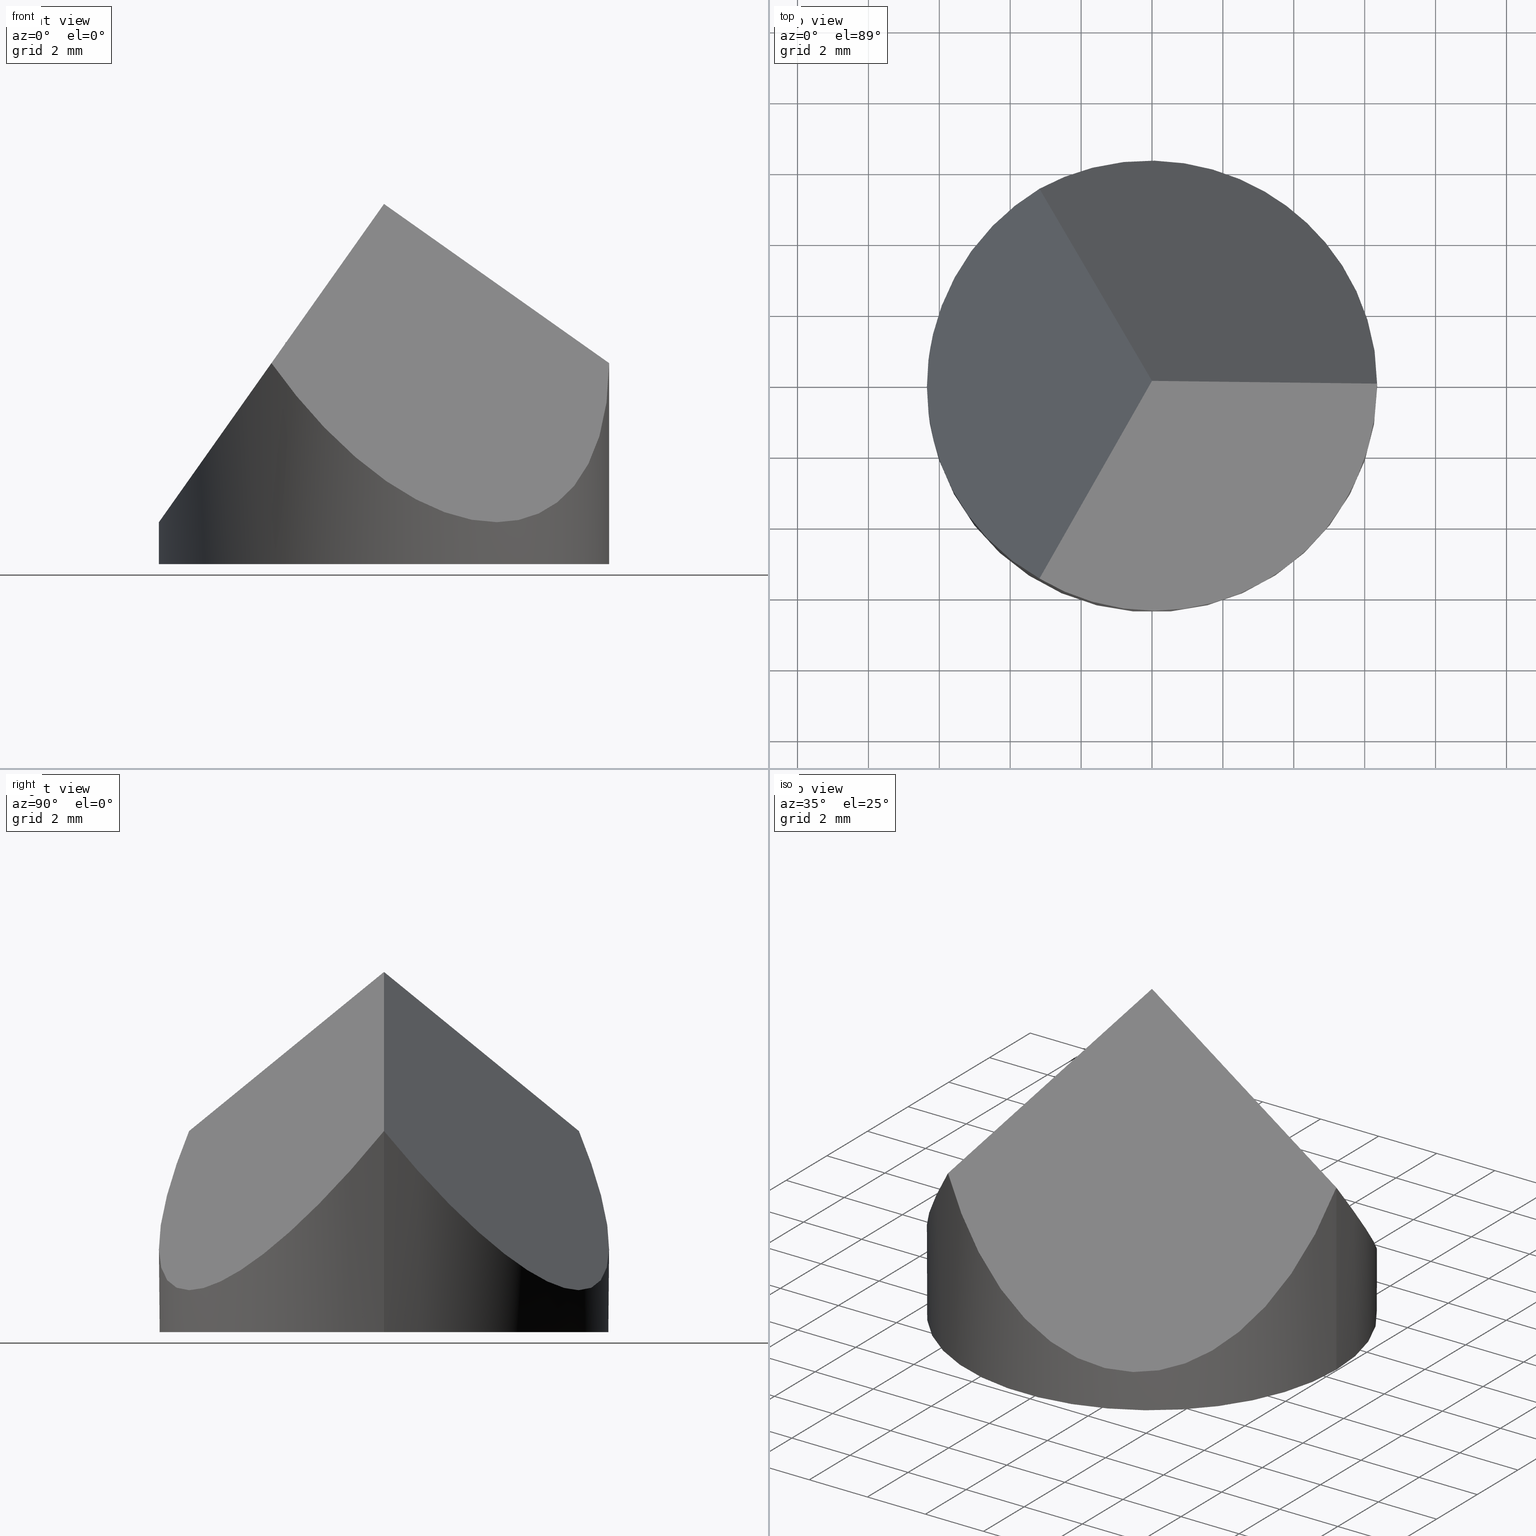
[diagram: canonical four-view strip — front | top / right | iso, engineering-drawing reading convention]
A machine part, canonical four-view strip (front | top / right | iso — engineering-drawing reading convention). The complete STEP part file that produces these views, byte-faithful:
ISO-10303-21;
HEADER;
FILE_DESCRIPTION (( 'STEP AP203' ),
    '1' );
FILE_NAME ('371530.STEP',
    '2019-07-25T06:10:56',
    ( '' ),
    ( '' ),
    'SwSTEP 2.0',
    'SolidWorks 2016',
    '' );
FILE_SCHEMA (( 'CONFIG_CONTROL_DESIGN' ));
ENDSEC;

DATA;
#1 = CC_DESIGN_APPROVAL ( #104, ( #160 ) ) ;
#2 = CARTESIAN_POINT ( 'NONE',  ( -6.349999999999999600, 0.0000000000000000000, 1.181608968241170100 ) ) ;
#3 = PRODUCT ( '371530', '371530', '', ( #162 ) ) ;
#4 =( BOUNDED_CURVE ( )  B_SPLINE_CURVE ( 3, ( #90, #62, #255, #232 ),
 .UNSPECIFIED., .F., .F. ) 
 B_SPLINE_CURVE_WITH_KNOTS ( ( 4, 4 ),
 ( 0.0000000000000000000, 1.047197551196596100 ),
 .UNSPECIFIED. ) 
 CURVE ( )  GEOMETRIC_REPRESENTATION_ITEM ( )  RATIONAL_B_SPLINE_CURVE ( ( 1.000000000000000000, 0.9106836025229593200, 0.9106836025229593200, 1.000000000000000000 ) ) 
 REPRESENTATION_ITEM ( '' )  );
#5 = AXIS2_PLACEMENT_3D ( 'NONE', #163, #184, #91 ) ;
#6 = CARTESIAN_POINT ( 'NONE',  ( 7.073520084914156000, -12.25169617543019700, 20.16139043989909000 ) ) ;
#7 = CALENDAR_DATE ( 2019, 25, 7 ) ;
#8 = ORIENTED_EDGE ( 'NONE', *, *, #205, .T. ) ;
#9 = AXIS2_PLACEMENT_3D ( 'NONE', #301, #155, #11 ) ;
#10 = CC_DESIGN_PERSON_AND_ORGANIZATION_ASSIGNMENT ( #218, #254, ( #166 ) ) ;
#11 = DIRECTION ( 'NONE',  ( 0.0000000000000000000, 0.6325343505460013800, 0.7745323075116674600 ) ) ;
#12 = DATE_AND_TIME ( #21, #38 ) ;
#13 = LINE ( 'NONE', #113, #239 ) ;
#14 = CARTESIAN_POINT ( 'NONE',  ( 6.350000000000000500, 5.499261314031192800, -1.062988789698542600 ) ) ;
#15 =( NAMED_UNIT ( * ) SI_UNIT ( $, .STERADIAN. ) SOLID_ANGLE_UNIT ( ) );
#16 = DATE_TIME_ROLE ( 'creation_date' ) ;
#17 = MANIFOLD_SOLID_BREP ( '�г�-����3', #203 ) ;
#18 = VECTOR ( 'NONE', #271, 999.9999999999998900 ) ;
#19 = APPLICATION_PROTOCOL_DEFINITION ( 'international standard', 'config_control_design', 1994, #139 ) ;
#20 = DIRECTION ( 'NONE',  ( 0.0000000000000000000, 0.0000000000000000000, 1.000000000000000000 ) ) ;
#21 = CALENDAR_DATE ( 2019, 25, 7 ) ;
#22 = COORDINATED_UNIVERSAL_TIME_OFFSET ( 8, 0, .AHEAD. ) ;
#23 = VERTEX_POINT ( 'NONE', #175 ) ;
#24 = APPROVAL ( #187, 'δָ��' ) ;
#25 = APPROVAL_PERSON_ORGANIZATION ( #114, #24, #280 ) ;
#26 = ORIENTED_EDGE ( 'NONE', *, *, #305, .F. ) ;
#27 = CARTESIAN_POINT ( 'NONE',  ( 0.0000000000000000000, 0.0000000000000000000, 0.0000000000000000000 ) ) ;
#28 = PLANE ( 'NONE',  #9 ) ;
#29 = ORIENTED_EDGE ( 'NONE', *, *, #181, .F. ) ;
#30 = CARTESIAN_POINT ( 'NONE',  ( 14.72243186433548900, -8.499999999999966200, 10.16000000000000000 ) ) ;
#31 = CARTESIAN_POINT ( 'NONE',  ( -8.673617379884035500E-016, -4.004885026051589500E-016, 10.16000000000000200 ) ) ;
#32 = CALENDAR_DATE ( 2019, 25, 7 ) ;
#33 = PERSON_AND_ORGANIZATION ( #106, #55 ) ;
#34 = CARTESIAN_POINT ( 'NONE',  ( 0.0000000000000000000, 0.0000000000000000000, 10.16000000000000000 ) ) ;
#35 = APPROVAL ( #40, 'δָ��' ) ;
#36 = PERSON_AND_ORGANIZATION ( #106, #55 ) ;
#37 = CARTESIAN_POINT ( 'NONE',  ( 0.0000000000000000000, 0.0000000000000000000, 0.0000000000000000000 ) ) ;
#38 = LOCAL_TIME ( 14, 10, 56.00000000000000000, #288 ) ;
#39 = DIRECTION ( 'NONE',  ( 0.0000000000000000000, 0.0000000000000000000, 1.000000000000000000 ) ) ;
#40 = APPROVAL_STATUS ( 'not_yet_approved' ) ;
#41 = CALENDAR_DATE ( 2019, 25, 7 ) ;
#42 = LOCAL_TIME ( 14, 10, 56.00000000000000000, #115 ) ;
#43 = ORIENTED_EDGE ( 'NONE', *, *, #126, .F. ) ;
#44 = ADVANCED_BREP_SHAPE_REPRESENTATION ( '371530', ( #17, #199 ), #47 ) ;
#45 = VECTOR ( 'NONE', #75, 1000.000000000000200 ) ;
#46 = EDGE_LOOP ( 'NONE', ( #274, #290 ) ) ;
#47 =( GEOMETRIC_REPRESENTATION_CONTEXT ( 3 ) GLOBAL_UNCERTAINTY_ASSIGNED_CONTEXT ( ( #248 ) ) GLOBAL_UNIT_ASSIGNED_CONTEXT ( ( #156, #191, #15 ) ) REPRESENTATION_CONTEXT ( 'NONE', 'WORKASPACE' ) );
#48 = CC_DESIGN_DATE_AND_TIME_ASSIGNMENT ( #238, #168, ( #303 ) ) ;
#49 = DATE_AND_TIME ( #296, #198 ) ;
#50 = PERSON_AND_ORGANIZATION ( #106, #55 ) ;
#51 = DIRECTION ( 'NONE',  ( 0.4082765531884057800, -0.7071557336614134900, 0.5772703218305811300 ) ) ;
#52 = VERTEX_POINT ( 'NONE', #295 ) ;
#53 = PLANE ( 'NONE',  #197 ) ;
#54 = AXIS2_PLACEMENT_3D ( 'NONE', #136, #118, #302 ) ;
#55 = ORGANIZATION ( 'δָ��', 'δָ��', '' ) ;
#56 = CC_DESIGN_DATE_AND_TIME_ASSIGNMENT ( #169, #97, ( #160 ) ) ;
#57 = CARTESIAN_POINT ( 'NONE',  ( 0.0000000000000000000, 0.0000000000000000000, 0.0000000000000000000 ) ) ;
#58 = PRODUCT ( '371530', '371530', '', ( #214 ) ) ;
#59 = CYLINDRICAL_SURFACE ( 'NONE', #142, 6.349999999999999600 ) ;
#60 = ORIENTED_EDGE ( 'NONE', *, *, #291, .T. ) ;
#61 = CARTESIAN_POINT ( 'NONE',  ( 6.349999999999999600, 7.776507174585692200E-016, 10.16000000000000000 ) ) ;
#62 = CARTESIAN_POINT ( 'NONE',  ( -6.349999999999998800, 2.324261314031181000, 1.181608968241169900 ) ) ;
#63 = EDGE_CURVE ( 'NONE', #298, #172, #154, .T. ) ;
#64 = APPROVAL_ROLE ( '' ) ;
#65 = LOCAL_TIME ( 14, 10, 56.00000000000000000, #133 ) ;
#66 = SHAPE_DEFINITION_REPRESENTATION ( #82, #44 ) ;
#67 = CC_DESIGN_PERSON_AND_ORGANIZATION_ASSIGNMENT ( #278, #165, ( #257 ) ) ;
#68 = APPLICATION_PROTOCOL_DEFINITION ( 'international standard', 'config_control_design', 1994, #93 ) ;
#69 = CC_DESIGN_SECURITY_CLASSIFICATION ( #135, ( #130 ) ) ;
#70 =( BOUNDED_CURVE ( )  B_SPLINE_CURVE ( 3, ( #251, #14, #131, #253 ),
 .UNSPECIFIED., .F., .T. ) 
 B_SPLINE_CURVE_WITH_KNOTS ( ( 4, 4 ),
 ( 5.235987755982986200, 7.330382858376182800 ),
 .UNSPECIFIED. ) 
 CURVE ( )  GEOMETRIC_REPRESENTATION_ITEM ( )  RATIONAL_B_SPLINE_CURVE ( ( 1.000000000000000000, 0.6666666666666663000, 0.6666666666666663000, 1.000000000000000000 ) ) 
 REPRESENTATION_ITEM ( '' )  );
#71 = LOCAL_TIME ( 14, 10, 56.00000000000000000, #202 ) ;
#72 = AXIS2_PLACEMENT_3D ( 'NONE', #37, #20, #140 ) ;
#73 = CC_DESIGN_PERSON_AND_ORGANIZATION_ASSIGNMENT ( #33, #304, ( #130 ) ) ;
#74 = VECTOR ( 'NONE', #51, 1000.000000000000100 ) ;
#75 = DIRECTION ( 'NONE',  ( -0.8165531063768112200, -1.387778794088437300E-016, 0.5772703218305786900 ) ) ;
#76 = EDGE_CURVE ( 'NONE', #122, #107, #81, .T. ) ;
#77 = CARTESIAN_POINT ( 'NONE',  ( 1.587499999999995200, -8.248891971046783000, -1.062988789698552200 ) ) ;
#78 = CALENDAR_DATE ( 2019, 25, 7 ) ;
#79 = CYLINDRICAL_SURFACE ( 'NONE', #223, 6.349999999999999600 ) ;
#80 = PLANE ( 'NONE',  #110 ) ;
#81 = LINE ( 'NONE', #228, #18 ) ;
#82 = PRODUCT_DEFINITION_SHAPE ( 'NONE', 'NONE',  #303 ) ;
#83 = ADVANCED_FACE ( 'NONE', ( #146 ), #80, .T. ) ;
#84 = EDGE_CURVE ( 'NONE', #52, #122, #220, .T. ) ;
#85 = DATE_AND_TIME ( #141, #123 ) ;
#86 = DIRECTION ( 'NONE',  ( -0.0000000000000000000, -0.0000000000000000000, -1.000000000000000000 ) ) ;
#87 = CC_DESIGN_APPROVAL ( #177, ( #303 ) ) ;
#88 = APPLICATION_CONTEXT ( 'configuration controlled 3d designs of mechanical parts and assemblies' ) ;
#89 = PERSON_AND_ORGANIZATION ( #106, #55 ) ;
#90 = CARTESIAN_POINT ( 'NONE',  ( -6.349999999999999600, 0.0000000000000000000, 1.181608968241170100 ) ) ;
#91 = DIRECTION ( 'NONE',  ( 1.000000000000000000, 0.0000000000000000000, 0.0000000000000000000 ) ) ;
#92 = CC_DESIGN_APPROVAL ( #213, ( #166 ) ) ;
#93 = APPLICATION_CONTEXT ( 'configuration controlled 3d designs of mechanical parts and assemblies' ) ;
#94 = PERSON_AND_ORGANIZATION ( #106, #55 ) ;
#95 = ORIENTED_EDGE ( 'NONE', *, *, #291, .F. ) ;
#96 = CC_DESIGN_PERSON_AND_ORGANIZATION_ASSIGNMENT ( #89, #119, ( #130 ) ) ;
#97 = DATE_TIME_ROLE ( 'classification_date' ) ;
#98 = FACE_OUTER_BOUND ( 'NONE', #249, .T. ) ;
#99 = APPROVAL_PERSON_ORGANIZATION ( #186, #104, #216 ) ;
#100 = EDGE_LOOP ( 'NONE', ( #227, #151, #196, #29, #60 ) ) ;
#101 = AXIS2_PLACEMENT_3D ( 'NONE', #27, #127, #128 ) ;
#102 = CARTESIAN_POINT ( 'NONE',  ( 0.0000000000000000000, -24.50000000000000000, 10.16000000000000000 ) ) ;
#103 = CARTESIAN_POINT ( 'NONE',  ( -5.187869342984408900, -4.337130657015589600, 2.824768569608221600 ) ) ;
#104 = APPROVAL ( #260, 'δָ��' ) ;
#105 = CC_DESIGN_APPROVAL ( #161, ( #130 ) ) ;
#106 = PERSON ( 'δָ��', 'δָ��', 'δָ��', ('δָ��'), ('δָ��'), ('δָ��') ) ;
#107 = VERTEX_POINT ( 'NONE', #31 ) ;
#108 = CARTESIAN_POINT ( 'NONE',  ( -6.349999999999999600, -2.324261314031182300, 1.181608968241170100 ) ) ;
#109 =( BOUNDED_CURVE ( )  B_SPLINE_CURVE ( 3, ( #176, #103, #108, #2 ),
 .UNSPECIFIED., .F., .F. ) 
 B_SPLINE_CURVE_WITH_KNOTS ( ( 4, 4 ),
 ( 5.235987755982989700, 6.283185307179586200 ),
 .UNSPECIFIED. ) 
 CURVE ( )  GEOMETRIC_REPRESENTATION_ITEM ( )  RATIONAL_B_SPLINE_CURVE ( ( 1.000000000000000000, 0.9106836025229592100, 0.9106836025229592100, 1.000000000000000000 ) ) 
 REPRESENTATION_ITEM ( '' )  );
#110 = AXIS2_PLACEMENT_3D ( 'NONE', #30, #124, #173 ) ;
#111 = CC_DESIGN_APPROVAL ( #24, ( #135 ) ) ;
#112 = VERTEX_POINT ( 'NONE', #125 ) ;
#113 = CARTESIAN_POINT ( 'NONE',  ( -6.349999999999999600, 0.0000000000000000000, 10.16000000000000000 ) ) ;
#114 = PERSON_AND_ORGANIZATION ( #106, #55 ) ;
#115 = COORDINATED_UNIVERSAL_TIME_OFFSET ( 8, 0, .AHEAD. ) ;
#116 = ORIENTED_EDGE ( 'NONE', *, *, #164, .F. ) ;
#117 = PERSON_AND_ORGANIZATION_ROLE ( 'design_owner' ) ;
#118 = DIRECTION ( 'NONE',  ( 0.0000000000000000000, 0.0000000000000000000, 1.000000000000000000 ) ) ;
#119 = PERSON_AND_ORGANIZATION_ROLE ( 'design_supplier' ) ;
#120 = COORDINATED_UNIVERSAL_TIME_OFFSET ( 8, 0, .AHEAD. ) ;
#121 = APPROVAL_PERSON_ORGANIZATION ( #129, #161, #259 ) ;
#122 = VERTEX_POINT ( 'NONE', #226 ) ;
#123 = LOCAL_TIME ( 14, 10, 56.00000000000000000, #22 ) ;
#124 = DIRECTION ( 'NONE',  ( 0.4082200218682777700, 0.7070578185427395200, 0.5774302165486711000 ) ) ;
#125 = CARTESIAN_POINT ( 'NONE',  ( -6.349999999999999600, 0.0000000000000000000, 1.181608968241170100 ) ) ;
#126 = EDGE_CURVE ( 'NONE', #52, #107, #289, .T. ) ;
#127 = DIRECTION ( 'NONE',  ( 0.0000000000000000000, 0.0000000000000000000, 1.000000000000000000 ) ) ;
#128 = DIRECTION ( 'NONE',  ( 1.000000000000000000, 0.0000000000000000000, 0.0000000000000000000 ) ) ;
#129 = PERSON_AND_ORGANIZATION ( #106, #55 ) ;
#130 = PRODUCT_DEFINITION_FORMATION_WITH_SPECIFIED_SOURCE ( '�κ�', '', #3, .NOT_KNOWN. ) ;
#131 = CARTESIAN_POINT ( 'NONE',  ( 1.587499999999992800, 8.248891971046784700, -1.062988789698558100 ) ) ;
#132 = CARTESIAN_POINT ( 'NONE',  ( 0.0000000000000000000, 0.0000000000000000000, 10.16000000000000000 ) ) ;
#133 = COORDINATED_UNIVERSAL_TIME_OFFSET ( 8, 0, .AHEAD. ) ;
#134 = VECTOR ( 'NONE', #212, 1000.000000000000000 ) ;
#135 = SECURITY_CLASSIFICATION ( '', '', #159 ) ;
#136 = CARTESIAN_POINT ( 'NONE',  ( 0.0000000000000000000, 0.0000000000000000000, 0.0000000000000000000 ) ) ;
#137 = DESIGN_CONTEXT ( 'detailed design', #93, 'design' ) ;
#138 = APPROVAL_STATUS ( 'not_yet_approved' ) ;
#139 = APPLICATION_CONTEXT ( 'configuration controlled 3d designs of mechanical parts and assemblies' ) ;
#140 = DIRECTION ( 'NONE',  ( 1.000000000000000000, 0.0000000000000000000, 0.0000000000000000000 ) ) ;
#141 = CALENDAR_DATE ( 2019, 25, 7 ) ;
#142 = AXIS2_PLACEMENT_3D ( 'NONE', #132, #250, #300 ) ;
#143 = PERSON_AND_ORGANIZATION_ROLE ( 'creator' ) ;
#144 = CC_DESIGN_PERSON_AND_ORGANIZATION_ASSIGNMENT ( #36, #234, ( #135 ) ) ;
#145 = CC_DESIGN_PERSON_AND_ORGANIZATION_ASSIGNMENT ( #193, #236, ( #58 ) ) ;
#146 = FACE_OUTER_BOUND ( 'NONE', #189, .T. ) ;
#147 = CARTESIAN_POINT ( 'NONE',  ( 6.350000000000003200, 1.145603619295304100E-015, 5.670804484120599100 ) ) ;
#148 = CARTESIAN_POINT ( 'NONE',  ( 6.350000000000000500, -5.499261314031188300, -1.062988789698535700 ) ) ;
#149 = APPROVAL_DATE_TIME ( #217, #161 ) ;
#150 = CARTESIAN_POINT ( 'NONE',  ( -3.175000000000009600, -5.499261314031189200, 5.670804484120572500 ) ) ;
#151 = ORIENTED_EDGE ( 'NONE', *, *, #305, .T. ) ;
#152 = CC_DESIGN_SECURITY_CLASSIFICATION ( #160, ( #257 ) ) ;
#153 = APPROVAL_PERSON_ORGANIZATION ( #235, #35, #64 ) ;
#154 = CIRCLE ( 'NONE', #101, 6.349999999999999600 ) ;
#155 = DIRECTION ( 'NONE',  ( -0.4082200218682780500, 0.7070578185427394100, -0.5774302165486712200 ) ) ;
#156 =( LENGTH_UNIT ( ) NAMED_UNIT ( * ) SI_UNIT ( .MILLI., .METRE. ) );
#157 = DATE_AND_TIME ( #297, #42 ) ;
#158 = EDGE_CURVE ( 'NONE', #23, #107, #268, .T. ) ;
#159 = SECURITY_CLASSIFICATION_LEVEL ( 'unclassified' ) ;
#160 = SECURITY_CLASSIFICATION ( '', '', #286 ) ;
#161 = APPROVAL ( #138, 'δָ��' ) ;
#162 = MECHANICAL_CONTEXT ( 'NONE', #88, 'mechanical' ) ;
#163 = CARTESIAN_POINT ( 'NONE',  ( 0.0000000000000000000, 0.0000000000000000000, 0.0000000000000000000 ) ) ;
#164 = EDGE_CURVE ( 'NONE', #122, #112, #109, .T. ) ;
#165 = PERSON_AND_ORGANIZATION_ROLE ( 'design_supplier' ) ;
#166 = PRODUCT_DEFINITION ( 'δ֪', '', #130, #282 ) ;
#167 = APPROVAL_STATUS ( 'not_yet_approved' ) ;
#168 = DATE_TIME_ROLE ( 'creation_date' ) ;
#169 = DATE_AND_TIME ( #41, #65 ) ;
#170 = ORIENTED_EDGE ( 'NONE', *, *, #84, .T. ) ;
#171 = CC_DESIGN_PERSON_AND_ORGANIZATION_ASSIGNMENT ( #94, #194, ( #257 ) ) ;
#172 = VERTEX_POINT ( 'NONE', #275 ) ;
#173 = DIRECTION ( 'NONE',  ( 0.0000000000000000000, -0.6325343505460012700, 0.7745323075116675700 ) ) ;
#174 = ADVANCED_FACE ( 'NONE', ( #98 ), #53, .F. ) ;
#175 = CARTESIAN_POINT ( 'NONE',  ( -3.175000000000005200, 5.499261314031177700, 5.670804484120573400 ) ) ;
#176 = CARTESIAN_POINT ( 'NONE',  ( -3.175000000000009600, -5.499261314031189200, 5.670804484120572500 ) ) ;
#177 = APPROVAL ( #167, 'δָ��' ) ;
#178 = ADVANCED_FACE ( 'NONE', ( #207 ), #28, .F. ) ;
#179 = COORDINATED_UNIVERSAL_TIME_OFFSET ( 8, 0, .AHEAD. ) ;
#180 = ORIENTED_EDGE ( 'NONE', *, *, #181, .T. ) ;
#181 = EDGE_CURVE ( 'NONE', #112, #298, #13, .T. ) ;
#182 = PERSON_AND_ORGANIZATION ( #106, #55 ) ;
#183 = DIRECTION ( 'NONE',  ( -0.0000000000000000000, -0.0000000000000000000, -1.000000000000000000 ) ) ;
#184 = DIRECTION ( 'NONE',  ( 0.0000000000000000000, 0.0000000000000000000, 1.000000000000000000 ) ) ;
#185 = APPLICATION_PROTOCOL_DEFINITION ( 'international standard', 'config_control_design', 1994, #88 ) ;
#186 = PERSON_AND_ORGANIZATION ( #106, #55 ) ;
#187 = APPROVAL_STATUS ( 'not_yet_approved' ) ;
#188 = DATE_AND_TIME ( #7, #71 ) ;
#189 = EDGE_LOOP ( 'NONE', ( #43, #8, #266 ) ) ;
#190 = APPLICATION_PROTOCOL_DEFINITION ( 'international standard', 'config_control_design', 1994, #309 ) ;
#191 =( NAMED_UNIT ( * ) PLANE_ANGLE_UNIT ( ) SI_UNIT ( $, .RADIAN. ) );
#192 = PERSON_AND_ORGANIZATION ( #106, #55 ) ;
#193 = PERSON_AND_ORGANIZATION ( #106, #55 ) ;
#194 = PERSON_AND_ORGANIZATION_ROLE ( 'creator' ) ;
#195 = CC_DESIGN_PERSON_AND_ORGANIZATION_ASSIGNMENT ( #50, #117, ( #3 ) ) ;
#196 = ORIENTED_EDGE ( 'NONE', *, *, #247, .T. ) ;
#197 = AXIS2_PLACEMENT_3D ( 'NONE', #102, #201, #244 ) ;
#198 = LOCAL_TIME ( 14, 10, 56.00000000000000000, #120 ) ;
#199 = AXIS2_PLACEMENT_3D ( 'NONE', #57, #39, #208 ) ;
#200 = LINE ( 'NONE', #61, #134 ) ;
#201 = DIRECTION ( 'NONE',  ( 0.8164400437365592100, 0.0000000000000000000, -0.5774302165486713300 ) ) ;
#202 = COORDINATED_UNIVERSAL_TIME_OFFSET ( 8, 0, .AHEAD. ) ;
#203 = CLOSED_SHELL ( 'NONE', ( #277, #204, #174, #294, #83, #178 ) ) ;
#204 = ADVANCED_FACE ( 'NONE', ( #246 ), #59, .T. ) ;
#205 = EDGE_CURVE ( 'NONE', #52, #23, #70, .T. ) ;
#206 = APPROVAL_DATE_TIME ( #49, #35 ) ;
#207 = FACE_OUTER_BOUND ( 'NONE', #279, .T. ) ;
#208 = DIRECTION ( 'NONE',  ( 1.000000000000000000, 0.0000000000000000000, 0.0000000000000000000 ) ) ;
#209 = LOCAL_TIME ( 14, 10, 56.00000000000000000, #272 ) ;
#210 = PERSON_AND_ORGANIZATION ( #106, #55 ) ;
#211 = EDGE_LOOP ( 'NONE', ( #26, #170, #308, #180, #231 ) ) ;
#212 = DIRECTION ( 'NONE',  ( -0.0000000000000000000, -0.0000000000000000000, -1.000000000000000000 ) ) ;
#213 = APPROVAL ( #233, 'δָ��' ) ;
#214 = MECHANICAL_CONTEXT ( 'NONE', #309, 'mechanical' ) ;
#215 = DATE_AND_TIME ( #285, #292 ) ;
#216 = APPROVAL_ROLE ( '' ) ;
#217 = DATE_AND_TIME ( #78, #224 ) ;
#218 = PERSON_AND_ORGANIZATION ( #106, #55 ) ;
#219 = ORIENTED_EDGE ( 'NONE', *, *, #84, .F. ) ;
#220 =( BOUNDED_CURVE ( )  B_SPLINE_CURVE ( 3, ( #147, #148, #77, #150 ),
 .UNSPECIFIED., .F., .F. ) 
 B_SPLINE_CURVE_WITH_KNOTS ( ( 4, 4 ),
 ( 5.235987755982986200, 7.330382858376182800 ),
 .UNSPECIFIED. ) 
 CURVE ( )  GEOMETRIC_REPRESENTATION_ITEM ( )  RATIONAL_B_SPLINE_CURVE ( ( 1.000000000000000000, 0.6666666666666663000, 0.6666666666666663000, 1.000000000000000000 ) ) 
 REPRESENTATION_ITEM ( '' )  );
#221 = DATE_AND_TIME ( #32, #283 ) ;
#222 = CALENDAR_DATE ( 2019, 25, 7 ) ;
#223 = AXIS2_PLACEMENT_3D ( 'NONE', #34, #183, #258 ) ;
#224 = LOCAL_TIME ( 14, 10, 56.00000000000000000, #179 ) ;
#225 = APPROVAL_PERSON_ORGANIZATION ( #210, #213, #284 ) ;
#226 = CARTESIAN_POINT ( 'NONE',  ( -3.175000000000009600, -5.499261314031189200, 5.670804484120572500 ) ) ;
#227 = ORIENTED_EDGE ( 'NONE', *, *, #205, .F. ) ;
#228 = CARTESIAN_POINT ( 'NONE',  ( -7.073520084914155100, -12.25169617543020500, 0.1586095601009106200 ) ) ;
#229 = PERSON_AND_ORGANIZATION ( #106, #55 ) ;
#230 = CARTESIAN_POINT ( 'NONE',  ( -6.349999999999999600, 0.0000000000000000000, 0.0000000000000000000 ) ) ;
#231 = ORIENTED_EDGE ( 'NONE', *, *, #63, .T. ) ;
#232 = CARTESIAN_POINT ( 'NONE',  ( -3.175000000000005200, 5.499261314031177700, 5.670804484120573400 ) ) ;
#233 = APPROVAL_STATUS ( 'not_yet_approved' ) ;
#234 = PERSON_AND_ORGANIZATION_ROLE ( 'classification_officer' ) ;
#235 = PERSON_AND_ORGANIZATION ( #106, #55 ) ;
#236 = PERSON_AND_ORGANIZATION_ROLE ( 'design_owner' ) ;
#237 = APPROVAL_ROLE ( '' ) ;
#238 = DATE_AND_TIME ( #222, #209 ) ;
#239 = VECTOR ( 'NONE', #86, 1000.000000000000000 ) ;
#240 = ORIENTED_EDGE ( 'NONE', *, *, #158, .F. ) ;
#241 = CC_DESIGN_APPROVAL ( #35, ( #257 ) ) ;
#242 = ORIENTED_EDGE ( 'NONE', *, *, #126, .T. ) ;
#243 = CARTESIAN_POINT ( 'NONE',  ( 9.816313587227853100, 1.734723475976807100E-015, 3.220259694763891700 ) ) ;
#244 = DIRECTION ( 'NONE',  ( -0.5774302165486712200, 0.0000000000000000000, -0.8164400437365591000 ) ) ;
#245 = APPROVAL_PERSON_ORGANIZATION ( #192, #177, #237 ) ;
#246 = FACE_OUTER_BOUND ( 'NONE', #211, .T. ) ;
#247 = EDGE_CURVE ( 'NONE', #172, #298, #265, .T. ) ;
#248 = UNCERTAINTY_MEASURE_WITH_UNIT (LENGTH_MEASURE( 1.000000000000000100E-005 ), #156, 'distance_accuracy_value', 'NONE');
#249 = EDGE_LOOP ( 'NONE', ( #116, #293, #240, #95 ) ) ;
#250 = DIRECTION ( 'NONE',  ( -0.0000000000000000000, -0.0000000000000000000, -1.000000000000000000 ) ) ;
#251 = CARTESIAN_POINT ( 'NONE',  ( 6.350000000000003200, 1.145603619295304100E-015, 5.670804484120599100 ) ) ;
#252 = APPROVAL_DATE_TIME ( #215, #24 ) ;
#253 = CARTESIAN_POINT ( 'NONE',  ( -3.175000000000005200, 5.499261314031177700, 5.670804484120573400 ) ) ;
#254 = PERSON_AND_ORGANIZATION_ROLE ( 'creator' ) ;
#255 = CARTESIAN_POINT ( 'NONE',  ( -5.187869342984409800, 4.337130657015586100, 2.824768569608218100 ) ) ;
#256 = PRODUCT_DEFINITION_SHAPE ( 'NONE', 'NONE',  #166 ) ;
#257 = PRODUCT_DEFINITION_FORMATION_WITH_SPECIFIED_SOURCE ( '�κ�', '', #58, .NOT_KNOWN. ) ;
#258 = DIRECTION ( 'NONE',  ( -1.000000000000000000, 0.0000000000000000000, 0.0000000000000000000 ) ) ;
#259 = APPROVAL_ROLE ( '' ) ;
#260 = APPROVAL_STATUS ( 'not_yet_approved' ) ;
#261 = APPROVAL_DATE_TIME ( #85, #177 ) ;
#262 = FACE_OUTER_BOUND ( 'NONE', #100, .T. ) ;
#263 = CC_DESIGN_PERSON_AND_ORGANIZATION_ASSIGNMENT ( #182, #143, ( #303 ) ) ;
#264 = APPROVAL_DATE_TIME ( #221, #104 ) ;
#265 = CIRCLE ( 'NONE', #5, 6.349999999999999600 ) ;
#266 = ORIENTED_EDGE ( 'NONE', *, *, #158, .T. ) ;
#267 = COORDINATED_UNIVERSAL_TIME_OFFSET ( 8, 0, .AHEAD. ) ;
#268 = LINE ( 'NONE', #6, #74 ) ;
#269 = CC_DESIGN_PERSON_AND_ORGANIZATION_ASSIGNMENT ( #229, #311, ( #160 ) ) ;
#270 = CC_DESIGN_DATE_AND_TIME_ASSIGNMENT ( #12, #306, ( #135 ) ) ;
#271 = DIRECTION ( 'NONE',  ( 0.4082765531884057200, 0.7071557336614138200, 0.5772703218305810200 ) ) ;
#272 = COORDINATED_UNIVERSAL_TIME_OFFSET ( 8, 0, .AHEAD. ) ;
#273 = FACE_OUTER_BOUND ( 'NONE', #46, .T. ) ;
#274 = ORIENTED_EDGE ( 'NONE', *, *, #63, .F. ) ;
#275 = CARTESIAN_POINT ( 'NONE',  ( 6.349999999999999600, 7.776507174585692200E-016, 0.0000000000000000000 ) ) ;
#276 = PRODUCT_RELATED_PRODUCT_CATEGORY ( 'detail', '', ( #58 ) ) ;
#277 = ADVANCED_FACE ( 'NONE', ( #262 ), #79, .T. ) ;
#278 = PERSON_AND_ORGANIZATION ( #106, #55 ) ;
#279 = EDGE_LOOP ( 'NONE', ( #242, #312, #219 ) ) ;
#280 = APPROVAL_ROLE ( '' ) ;
#281 = APPROVAL_DATE_TIME ( #157, #213 ) ;
#282 = DESIGN_CONTEXT ( 'detailed design', #139, 'design' ) ;
#283 = LOCAL_TIME ( 14, 10, 56.00000000000000000, #307 ) ;
#284 = APPROVAL_ROLE ( '' ) ;
#285 = CALENDAR_DATE ( 2019, 25, 7 ) ;
#286 = SECURITY_CLASSIFICATION_LEVEL ( 'unclassified' ) ;
#287 = CC_DESIGN_DATE_AND_TIME_ASSIGNMENT ( #188, #16, ( #166 ) ) ;
#288 = COORDINATED_UNIVERSAL_TIME_OFFSET ( 8, 0, .AHEAD. ) ;
#289 = LINE ( 'NONE', #243, #45 ) ;
#290 = ORIENTED_EDGE ( 'NONE', *, *, #247, .F. ) ;
#291 = EDGE_CURVE ( 'NONE', #112, #23, #4, .T. ) ;
#292 = LOCAL_TIME ( 14, 10, 56.00000000000000000, #267 ) ;
#293 = ORIENTED_EDGE ( 'NONE', *, *, #76, .T. ) ;
#294 = ADVANCED_FACE ( 'NONE', ( #273 ), #310, .F. ) ;
#295 = CARTESIAN_POINT ( 'NONE',  ( 6.350000000000003200, 1.145603619295304100E-015, 5.670804484120599100 ) ) ;
#296 = CALENDAR_DATE ( 2019, 25, 7 ) ;
#297 = CALENDAR_DATE ( 2019, 25, 7 ) ;
#298 = VERTEX_POINT ( 'NONE', #230 ) ;
#299 = PRODUCT_RELATED_PRODUCT_CATEGORY ( 'detail', '', ( #3 ) ) ;
#300 = DIRECTION ( 'NONE',  ( -1.000000000000000000, 0.0000000000000000000, 0.0000000000000000000 ) ) ;
#301 = CARTESIAN_POINT ( 'NONE',  ( 11.69134295108994500, 6.749999999999978700, 10.16000000000000000 ) ) ;
#302 = DIRECTION ( 'NONE',  ( 1.000000000000000000, 0.0000000000000000000, -0.0000000000000000000 ) ) ;
#303 = PRODUCT_DEFINITION ( 'δ֪', '', #257, #137 ) ;
#304 = PERSON_AND_ORGANIZATION_ROLE ( 'creator' ) ;
#305 = EDGE_CURVE ( 'NONE', #52, #172, #200, .T. ) ;
#306 = DATE_TIME_ROLE ( 'classification_date' ) ;
#307 = COORDINATED_UNIVERSAL_TIME_OFFSET ( 8, 0, .AHEAD. ) ;
#308 = ORIENTED_EDGE ( 'NONE', *, *, #164, .T. ) ;
#309 = APPLICATION_CONTEXT ( 'configuration controlled 3d designs of mechanical parts and assemblies' ) ;
#310 = PLANE ( 'NONE',  #54 ) ;
#311 = PERSON_AND_ORGANIZATION_ROLE ( 'classification_officer' ) ;
#312 = ORIENTED_EDGE ( 'NONE', *, *, #76, .F. ) ;
ENDSEC;
END-ISO-10303-21;
